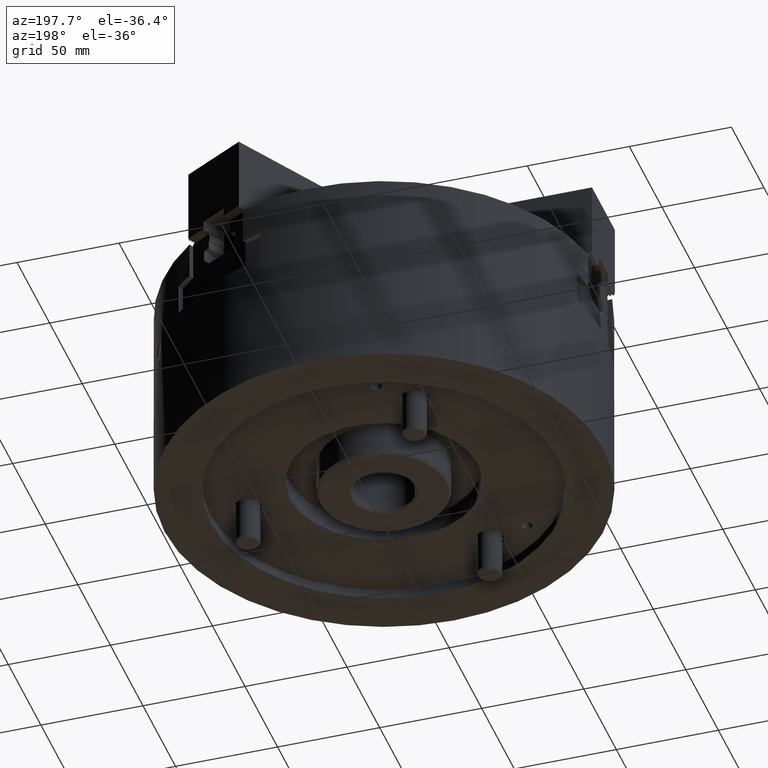
[diagram: clean part render]
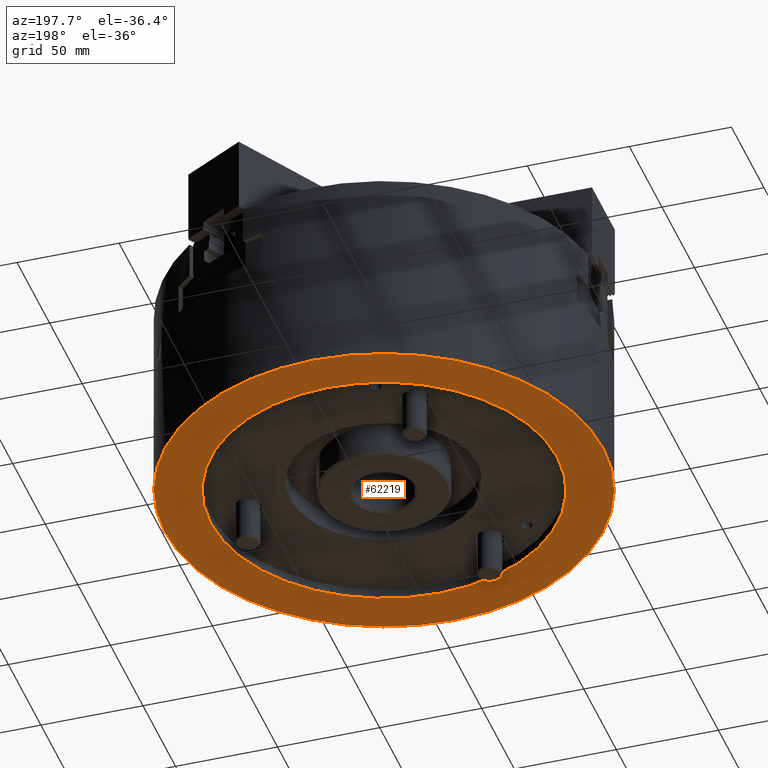
[diagram: same view with one face highlighted and labeled with its STEP entity id]
A machine part, auxiliary view. The second image highlights one B-rep face of the part: STEP entity #62219.
In plain terms, the highlighted planar face has unit normal (-0, 0, 1).
Its self-contained STEP definition (entity closure, byte-faithful):
#1559=CIRCLE('',#65181,85.);
#1560=CIRCLE('',#65182,107.5);
#3448=ORIENTED_EDGE('',*,*,#22390,.T.);
#3449=ORIENTED_EDGE('',*,*,#22391,.F.);
#22390=EDGE_CURVE('',#31869,#31869,#1559,.T.);
#22391=EDGE_CURVE('',#31870,#31870,#1560,.T.);
#31869=VERTEX_POINT('',#89940);
#31870=VERTEX_POINT('',#89942);
#53698=EDGE_LOOP('',(#3448));
#53699=EDGE_LOOP('',(#3449));
#56912=FACE_BOUND('',#53698,.T.);
#56913=FACE_BOUND('',#53699,.T.);
#60021=PLANE('',#65180);
#62219=ADVANCED_FACE('',(#56912,#56913),#60021,.F.);
#65180=AXIS2_PLACEMENT_3D('',#89938,#70203,#70204);
#65181=AXIS2_PLACEMENT_3D('',#89939,#70205,#70206);
#65182=AXIS2_PLACEMENT_3D('',#89941,#70207,#70208);
#70203=DIRECTION('',(-2.34290668463255E-15,0.,1.));
#70204=DIRECTION('',(1.,0.,2.34534613952064E-15));
#70205=DIRECTION('',(-2.34290668463255E-15,0.,1.));
#70206=DIRECTION('',(1.,0.,2.28575328599297E-15));
#70207=DIRECTION('',(-2.34290668463255E-15,0.,1.));
#70208=DIRECTION('',(1.,0.,2.32372260968056E-15));
#89938=CARTESIAN_POINT('',(-84.9999999999998,0.,-100.));
#89939=CARTESIAN_POINT('',(2.34290668463255E-13,0.,-100.));
#89940=CARTESIAN_POINT('',(85.0000000000002,0.,-99.9999999999998));
#89941=CARTESIAN_POINT('',(2.34290668463255E-13,0.,-100.));
#89942=CARTESIAN_POINT('',(107.5,0.,-99.9999999999998));